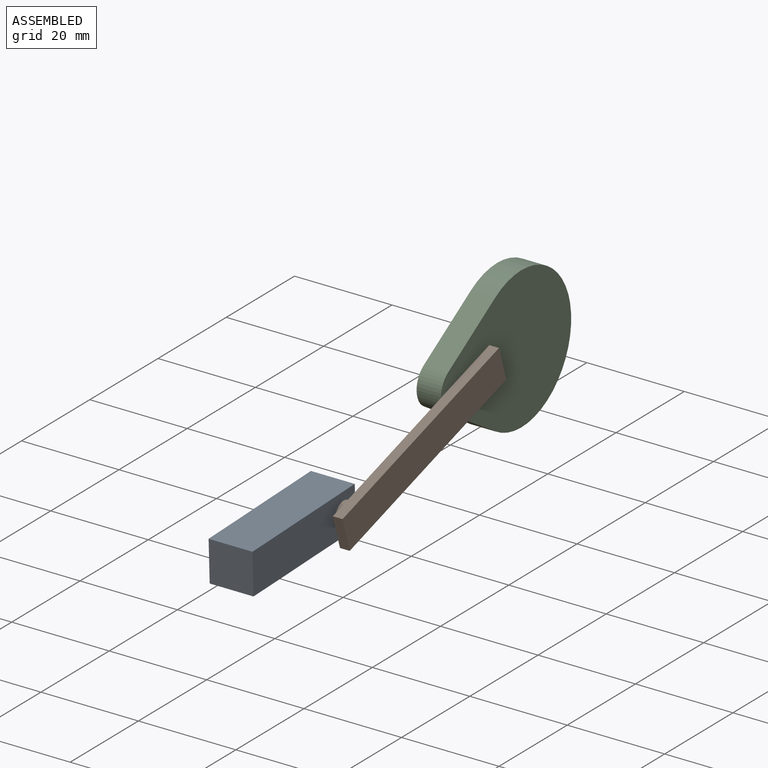
[diagram: assembled view]
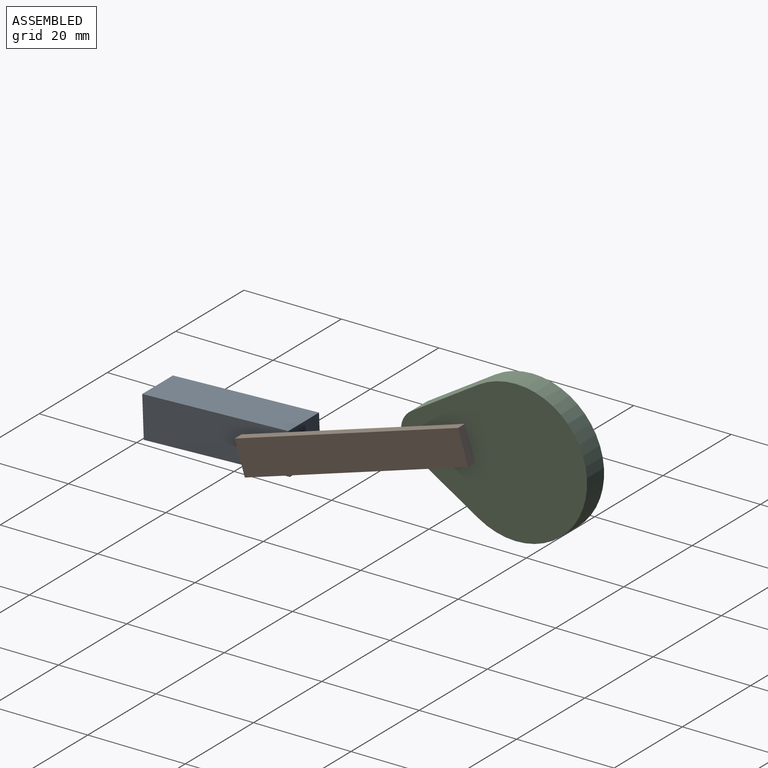
[diagram: assembled view, second angle]
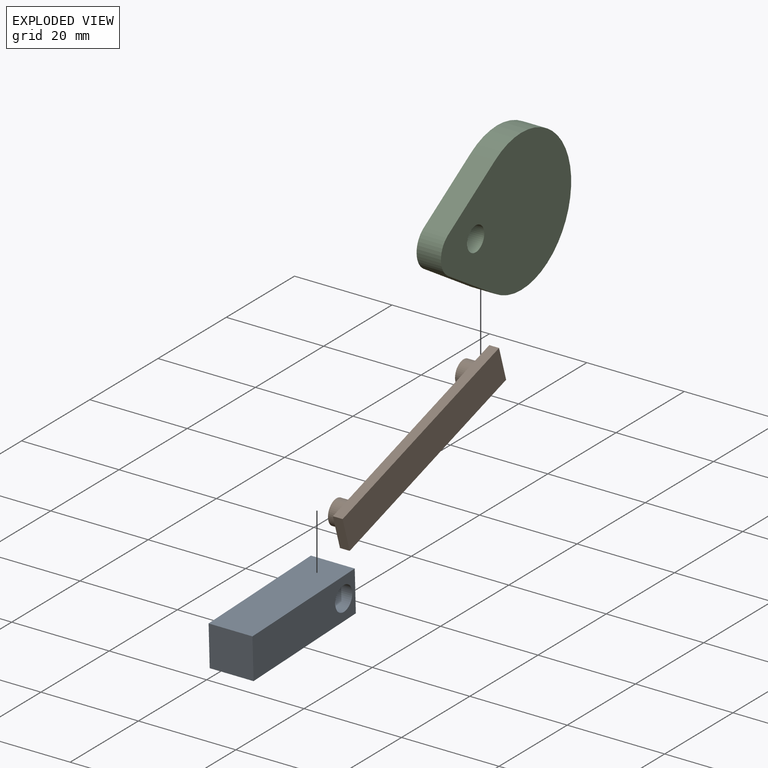
[diagram: exploded view]
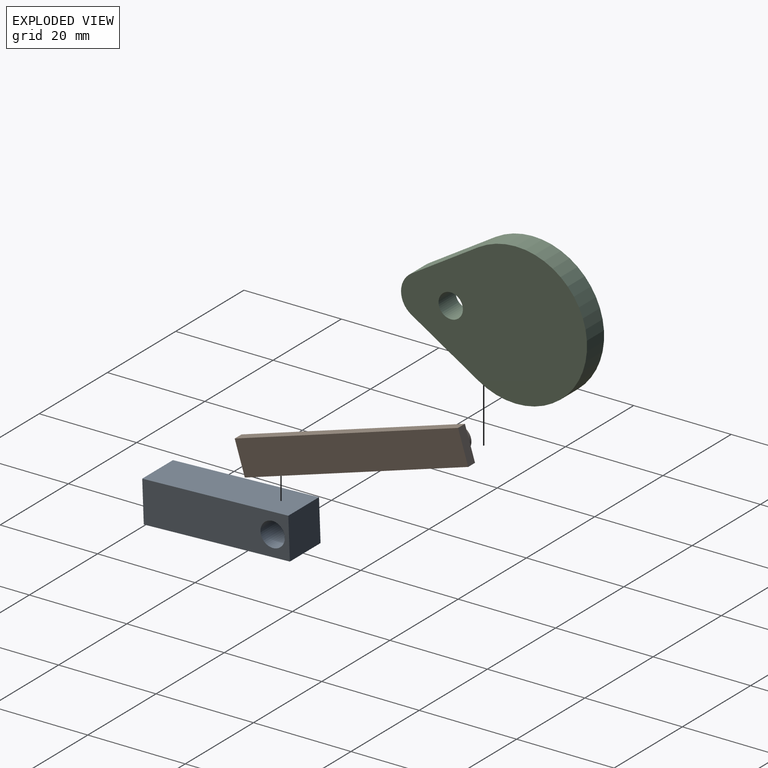
[diagram: exploded view, second angle]
ASSEMBLY  parts=3 mates=2
PART A: 7 faces, bbox 9x30x8.4 mm
  f0: plane 30x9mm, normal (0,0,1), area 270mm2, adj f1,f3,f4,f5
  f1: plane 30x8.43mm, normal (-1,0,0), area 233.1mm2, adj f0,f2,f4,f5,f6
  f2: plane 30x9mm, normal (0,0,-1), area 270mm2, adj f1,f3,f4,f5
  f3: plane 30x8.43mm, normal (1,0,0), area 233.1mm2, adj f0,f2,f4,f5,f6
  f4: plane 9x8.43mm, normal (0,1,0), area 75.8mm2, adj f0,f1,f2,f3
  f5: plane 9x8.43mm, normal (0,-1,0), area 75.8mm2, adj f0,f1,f2,f3
  f6: cylinder r=2.5mm len=9mm, axis (1,0,0), area 141.4mm2, adj f1,f3
PART B: 10 faces, bbox 48x5x7 mm
  f0: plane 48x2mm, normal (0,0,1), area 96mm2, adj f1,f3,f4,f5
  f1: plane 7x2mm, normal (-1,0,0), area 14mm2, adj f0,f2,f4,f5
  f2: plane 48x2mm, normal (0,0,-1), area 96mm2, adj f1,f3,f4,f5
  f3: plane 7x2mm, normal (1,0,0), area 14mm2, adj f0,f2,f4,f5
  f4: plane 48x7mm, normal (0,-1,0), area 296.7mm2, adj f0,f1,f2,f3,f6,f8
  f5: plane 48x7mm, normal (0,1,0), area 336mm2, adj f0,f1,f2,f3
  f6: cylinder r=2.5mm len=5mm, axis (0,1,0), area 47.1mm2, adj f4,f7
  f7: plane 5x5mm, normal (0,-1,0), area 19.6mm2, adj f6
  f8: cylinder r=2.5mm len=5mm, axis (0,1,0), area 47.1mm2, adj f4,f9
  f9: plane 5x5mm, normal (0,-1,0), area 19.6mm2, adj f8
PART C: 7 faces, bbox 5x29.2x38.2 mm
  f0: plane 13.76x8.56mm, normal (0,0.85,-0.53), area 81mm2, adj f1,f3,f4,f5
  f1: cylinder r=14.59mm len=29.18mm, axis (-1,0,0), area 310.4mm2, adj f0,f2,f4,f5
  f2: plane 13.76x8.56mm, normal (0,-0.85,-0.53), area 81mm2, adj f1,f3,f4,f5
  f3: cylinder r=4.5mm len=7.64mm, axis (-1,0,0), area 45.6mm2, adj f0,f2,f4,f5
  f4: plane 38.18x29.18mm, normal (1,0,0), area 763mm2, adj f0,f1,f2,f3,f6
  f5: plane 38.18x29.18mm, normal (-1,0,0), area 763mm2, adj f0,f1,f2,f3,f6
  f6: cylinder r=2.5mm len=5mm, axis (-1,0,0), area 78.5mm2, adj f4,f5
PLACE A rot(axis=(1,0,0),2.2deg) t=(-15.91,-38.67,-14.06)mm
PLACE B rot(axis=(0.15,0.15,-0.98),91.3deg) t=(-7.91,4.52,-7.9)mm
PLACE C rot(axis=(-1,0,0),90deg) t=(-15.41,38.58,-1.49)mm
MATE revolute A.f6 <-> B.f8  axis (1,0,0) through (-11.41,-12.06,-13.05)mm
MATE revolute C.f6 <-> B.f6  axis (-1,0,0) through (-10.41,25.19,-1.49)mm
